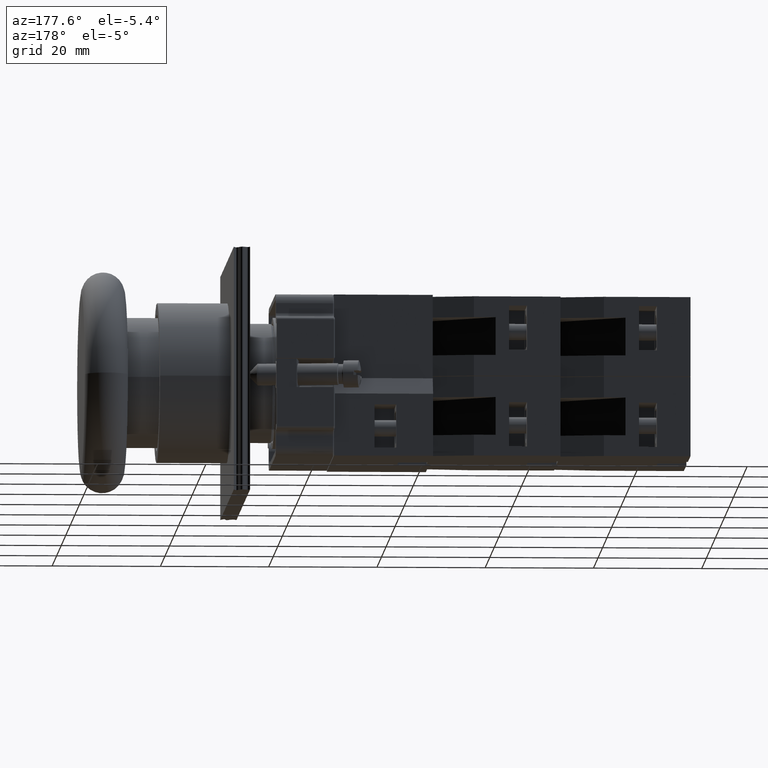
[diagram: clean part render]
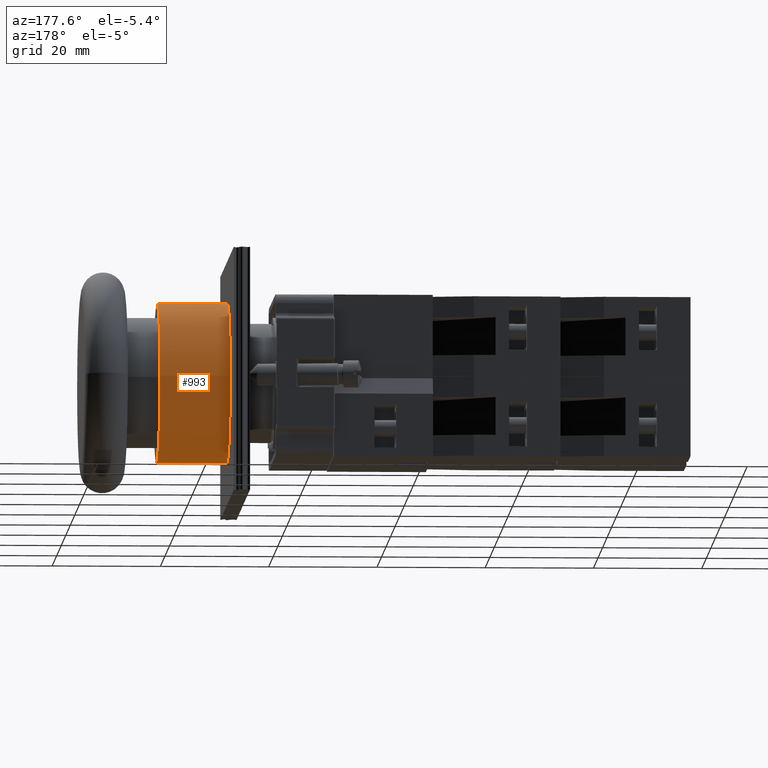
[diagram: same view with one face highlighted and labeled with its STEP entity id]
A machine part, auxiliary view. The second image highlights one B-rep face of the part: STEP entity #993.
In plain terms, the highlighted cylindrical surface (bore or boss wall) has radius 14.75 mm, axis along (1, 0, 0).
Its self-contained STEP definition (entity closure, byte-faithful):
#959=CARTESIAN_POINT('',(-8.120740052161068,14.673116139419628,0.0));
#960=VERTEX_POINT('',#959);
#961=CARTESIAN_POINT('',(-8.120740052161068,-0.076883860580367,0.0));
#962=DIRECTION('',(1.0,0.0,0.0));
#963=DIRECTION('',(0.0,1.0,0.0));
#964=AXIS2_PLACEMENT_3D('',#961,#962,#963);
#965=CIRCLE('',#964,14.749999999999996);
#966=EDGE_CURVE('',#960,#960,#965,.T.);
#974=CARTESIAN_POINT('',(-1.620740052161068,-0.076883860580367,0.0));
#975=DIRECTION('',(1.0,4.693247E-018,0.0));
#976=DIRECTION('',(0.0,1.0,0.0));
#977=AXIS2_PLACEMENT_3D('',#974,#975,#976);
#978=CYLINDRICAL_SURFACE('',#977,14.749999999999998);
#979=CARTESIAN_POINT('',(4.879259947838932,14.673116139419633,0.0));
#980=VERTEX_POINT('',#979);
#981=CARTESIAN_POINT('',(4.879259947838932,-0.076883860580367,0.0));
#982=DIRECTION('',(1.0,0.0,0.0));
#983=DIRECTION('',(0.0,1.0,0.0));
#984=AXIS2_PLACEMENT_3D('',#981,#982,#983);
#985=CIRCLE('',#984,14.750000000000000);
#986=EDGE_CURVE('',#980,#980,#985,.T.);
#987=ORIENTED_EDGE('',*,*,#986,.F.);
#988=EDGE_LOOP('',(#987));
#989=FACE_OUTER_BOUND('',#988,.T.);
#990=ORIENTED_EDGE('',*,*,#966,.T.);
#991=EDGE_LOOP('',(#990));
#992=FACE_BOUND('',#991,.T.);
#993=ADVANCED_FACE('',(#989,#992),#978,.T.);